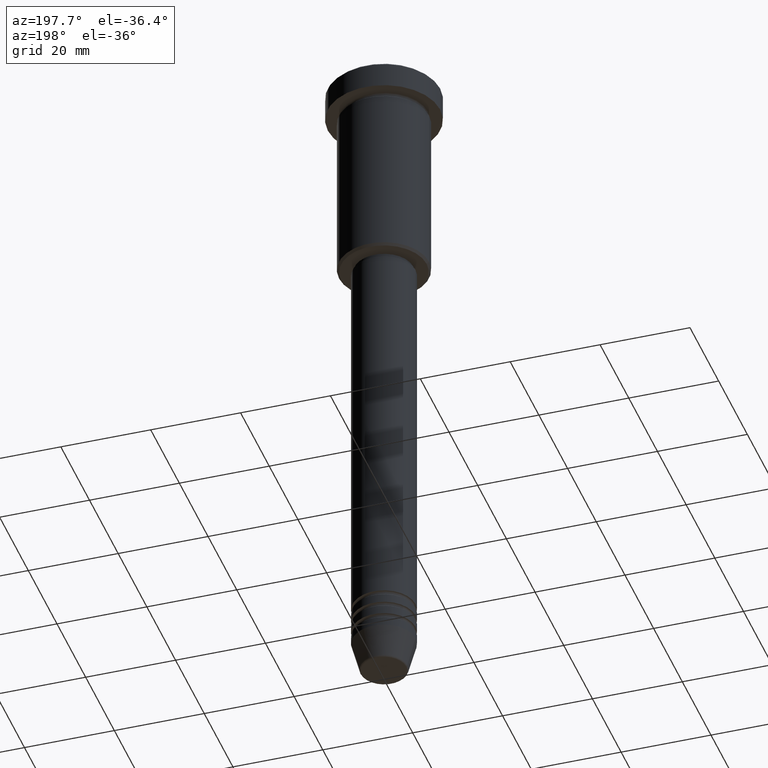
[diagram: clean part render]
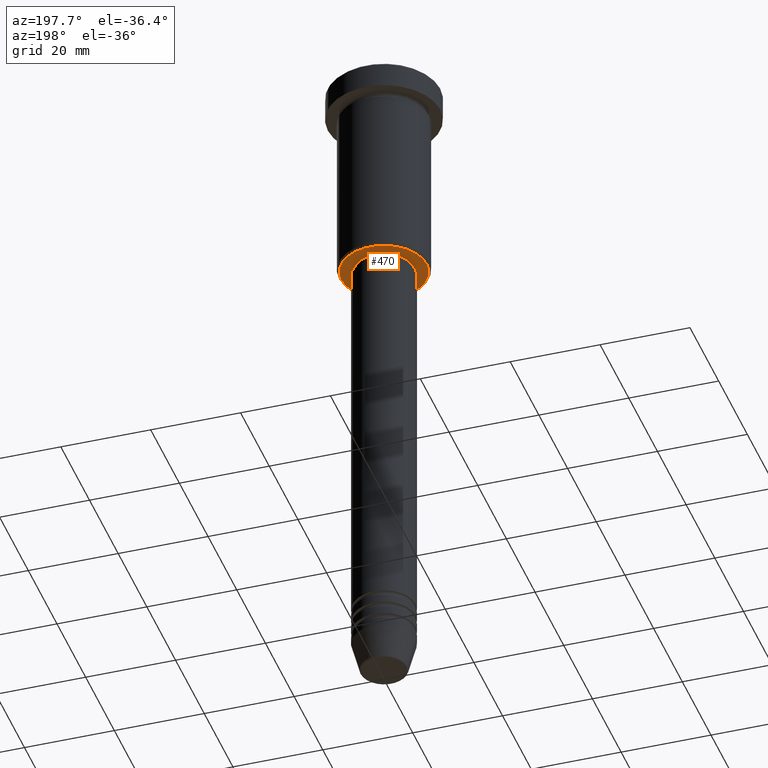
[diagram: same view with one face highlighted and labeled with its STEP entity id]
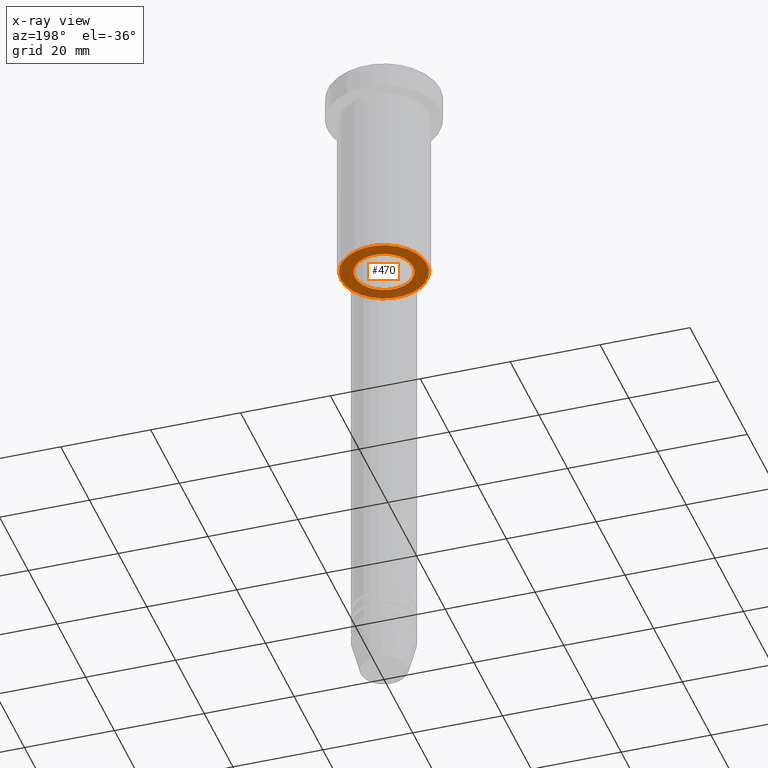
[diagram: x-ray of the same camera — body ghosted, the highlighted face saturated]
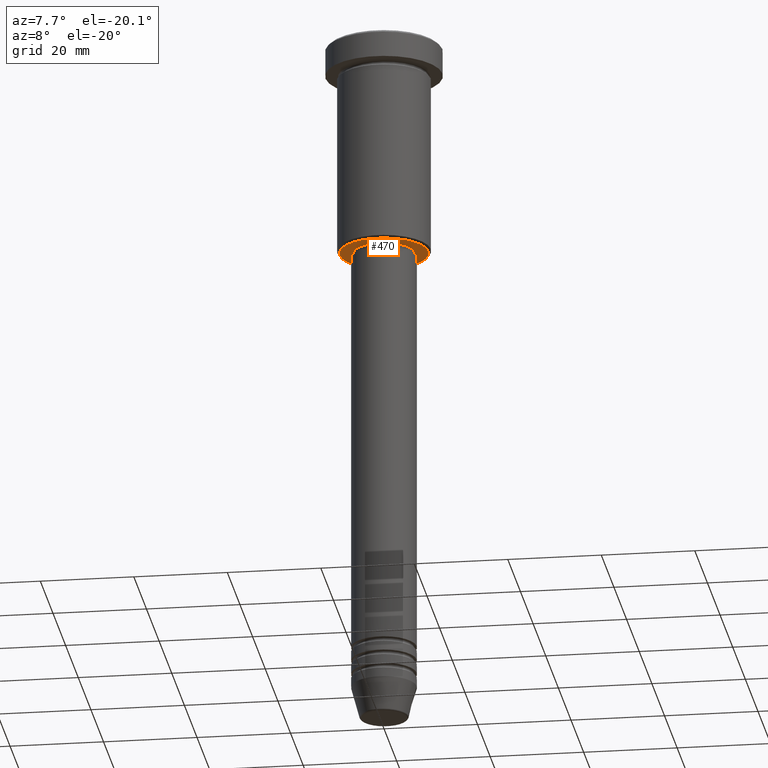
[diagram: same view with one face highlighted and labeled with its STEP entity id]
A machine part, auxiliary view. The second image highlights one B-rep face of the part: STEP entity #470.
The next image is the same camera in x-ray: the body ghosted, the highlighted face saturated — about 16% of this face is hidden behind the body in this view.
A second angle (auxiliary view) of the same face is appended — the face is thin or edge-on in the first view.
In plain terms, the highlighted planar face has unit normal (0, 0, -1).
Its self-contained STEP definition (entity closure, byte-faithful):
#12 = EDGE_LOOP ( 'NONE', ( #601, #375 ) ) ;
#13 = CIRCLE ( 'NONE', #957, 9.500000000000035527 ) ;
#33 = AXIS2_PLACEMENT_3D ( 'NONE', #480, #140, #1143 ) ;
#43 = CARTESIAN_POINT ( 'NONE',  ( 0.000000000000000000, 10.00000000000000000, -45.99999999999998579 ) ) ;
#51 = EDGE_CURVE ( 'NONE', #710, #582, #413, .T. ) ;
#95 = AXIS2_PLACEMENT_3D ( 'NONE', #943, #237, #317 ) ;
#106 = ORIENTED_EDGE ( 'NONE', *, *, #1017, .T. ) ;
#140 = DIRECTION ( 'NONE',  ( -0.000000000000000000, -0.000000000000000000, 1.000000000000000000 ) ) ;
#145 = AXIS2_PLACEMENT_3D ( 'NONE', #43, #402, #502 ) ;
#158 = CARTESIAN_POINT ( 'NONE',  ( 9.500000000000035527, 0.000000000000000000, -45.99999999999998579 ) ) ;
#207 = CARTESIAN_POINT ( 'NONE',  ( 0.000000000000000000, 0.000000000000000000, -45.99999999999998579 ) ) ;
#210 = ORIENTED_EDGE ( 'NONE', *, *, #885, .T. ) ;
#237 = DIRECTION ( 'NONE',  ( 0.000000000000000000, 0.000000000000000000, -1.000000000000000000 ) ) ;
#239 = VERTEX_POINT ( 'NONE', #1027 ) ;
#317 = DIRECTION ( 'NONE',  ( -1.000000000000000000, 0.000000000000000000, 0.000000000000000000 ) ) ;
#338 = DIRECTION ( 'NONE',  ( 1.000000000000000000, 0.000000000000000000, 0.000000000000000000 ) ) ;
#367 = CARTESIAN_POINT ( 'NONE',  ( -9.500000000000035527, 1.194030629168671639E-15, -45.99999999999998579 ) ) ;
#375 = ORIENTED_EDGE ( 'NONE', *, *, #51, .T. ) ;
#402 = DIRECTION ( 'NONE',  ( 0.000000000000000000, 0.000000000000000000, -1.000000000000000000 ) ) ;
#413 = CIRCLE ( 'NONE', #95, 9.500000000000035527 ) ;
#456 = DIRECTION ( 'NONE',  ( -0.000000000000000000, -0.000000000000000000, 1.000000000000000000 ) ) ;
#470 = ADVANCED_FACE ( 'NONE', ( #578, #769 ), #482, .T. ) ;
#480 = CARTESIAN_POINT ( 'NONE',  ( 0.000000000000000000, 0.000000000000000000, -45.99999999999998579 ) ) ;
#482 = PLANE ( 'NONE',  #145 ) ;
#502 = DIRECTION ( 'NONE',  ( -1.000000000000000000, 0.000000000000000000, -0.000000000000000000 ) ) ;
#578 = FACE_OUTER_BOUND ( 'NONE', #12, .T. ) ;
#582 = VERTEX_POINT ( 'NONE', #158 ) ;
#599 = DIRECTION ( 'NONE',  ( 0.000000000000000000, 0.000000000000000000, -1.000000000000000000 ) ) ;
#601 = ORIENTED_EDGE ( 'NONE', *, *, #895, .T. ) ;
#634 = EDGE_LOOP ( 'NONE', ( #106, #210 ) ) ;
#666 = CIRCLE ( 'NONE', #33, 6.500000000000000000 ) ;
#690 = CARTESIAN_POINT ( 'NONE',  ( 0.000000000000000000, 0.000000000000000000, -45.99999999999998579 ) ) ;
#710 = VERTEX_POINT ( 'NONE', #367 ) ;
#731 = DIRECTION ( 'NONE',  ( -1.000000000000000000, 0.000000000000000000, 0.000000000000000000 ) ) ;
#745 = AXIS2_PLACEMENT_3D ( 'NONE', #207, #456, #338 ) ;
#769 = FACE_BOUND ( 'NONE', #634, .T. ) ;
#803 = CIRCLE ( 'NONE', #745, 6.500000000000000000 ) ;
#885 = EDGE_CURVE ( 'NONE', #239, #902, #666, .T. ) ;
#895 = EDGE_CURVE ( 'NONE', #582, #710, #13, .T. ) ;
#902 = VERTEX_POINT ( 'NONE', #1007 ) ;
#943 = CARTESIAN_POINT ( 'NONE',  ( 0.000000000000000000, 0.000000000000000000, -45.99999999999998579 ) ) ;
#957 = AXIS2_PLACEMENT_3D ( 'NONE', #690, #599, #731 ) ;
#1007 = CARTESIAN_POINT ( 'NONE',  ( 6.500000000000000000, 0.000000000000000000, -45.99999999999998579 ) ) ;
#1017 = EDGE_CURVE ( 'NONE', #902, #239, #803, .T. ) ;
#1027 = CARTESIAN_POINT ( 'NONE',  ( -6.500000000000000000, 7.960204194457795477E-16, -45.99999999999998579 ) ) ;
#1143 = DIRECTION ( 'NONE',  ( 1.000000000000000000, 0.000000000000000000, 0.000000000000000000 ) ) ;